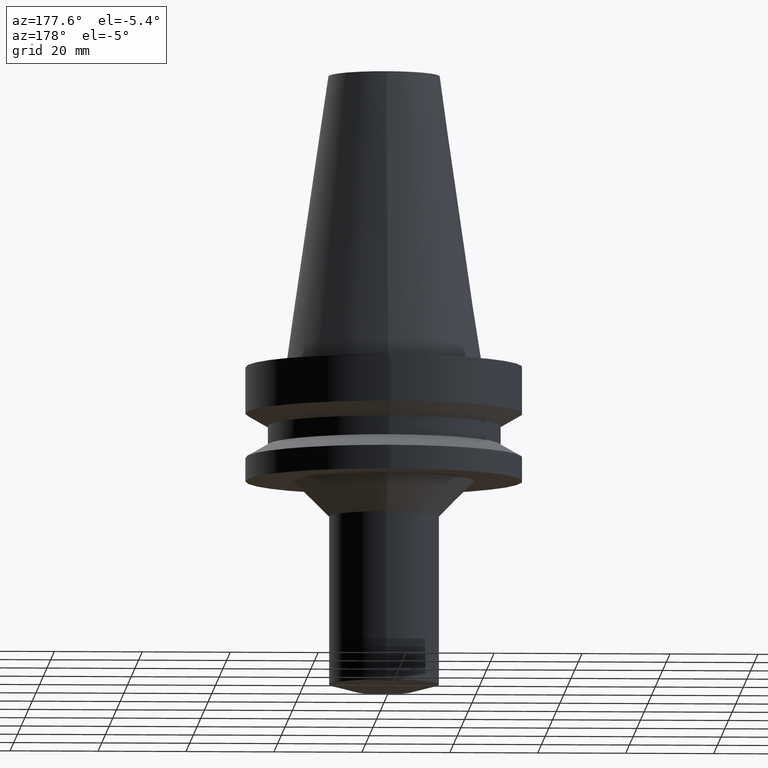
[diagram: clean part render]
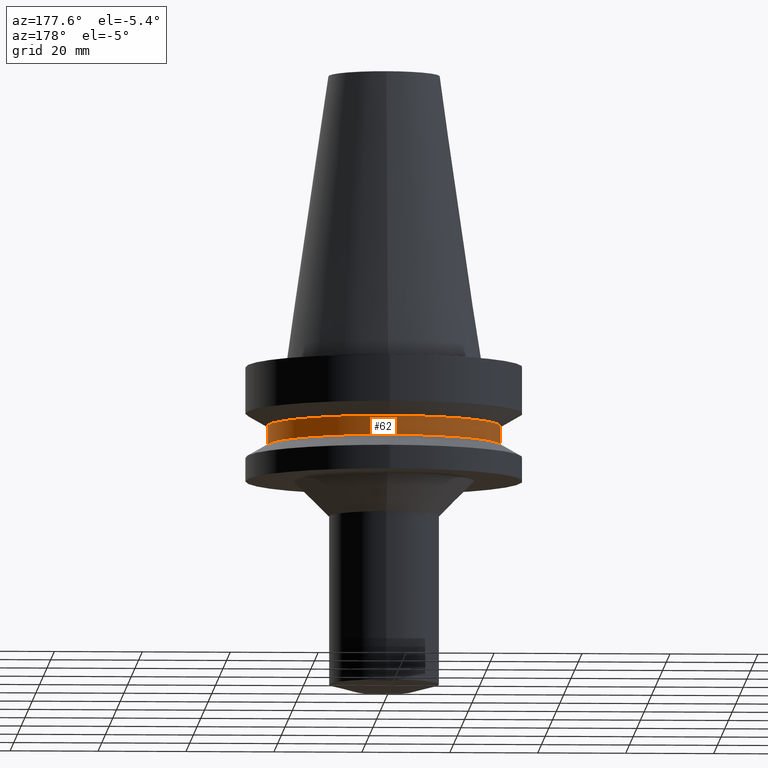
[diagram: same view with one face highlighted and labeled with its STEP entity id]
A machine part, auxiliary view. The second image highlights one B-rep face of the part: STEP entity #62.
In plain terms, the highlighted cylindrical surface (bore or boss wall) has radius 26.5 mm, axis along (0, -0, -1).
Its self-contained STEP definition (entity closure, byte-faithful):
#62=ADVANCED_FACE('Unnamed[1]',(#154,#155),#156,.T.);
#67=EDGE_CURVE('Unnamed[1]',#163,#163,#164,.T.);
#95=EDGE_CURVE('Unnamed[1]',#205,#205,#206,.T.);
#154=FACE_BOUND('',#275,.T.);
#155=FACE_BOUND('',#276,.T.);
#156=CYLINDRICAL_SURFACE('',#277,26.4999999999997);
#163=VERTEX_POINT('',#286);
#164=CIRCLE('',#287,26.5);
#205=VERTEX_POINT('',#338);
#206=CIRCLE('',#339,26.4999999999994);
#275=EDGE_LOOP('',(#408));
#276=EDGE_LOOP('',(#409));
#277=AXIS2_PLACEMENT_3D('',#410,#411,#412);
#286=CARTESIAN_POINT('',(1.1479681728942E-015,26.5,-18.7477430013855));
#287=AXIS2_PLACEMENT_3D('',#419,#420,#421);
#338=CARTESIAN_POINT('',(8.8494551369045E-016,26.4999999999995,-14.4522569986152));
#339=AXIS2_PLACEMENT_3D('',#464,#465,#466);
#408=ORIENTED_EDGE('',*,*,#67,.F.);
#409=ORIENTED_EDGE('',*,*,#95,.T.);
#410=CARTESIAN_POINT('',(1.01645684329232E-015,3.79612260994156E-014,-16.6000000000003));
#411=DIRECTION('',(6.12323399573677E-017,-4.72374929569225E-016,-1.0));
#412=DIRECTION('',(2.40974695439514E-032,1.0,-4.72374929569225E-016));
#419=CARTESIAN_POINT('',(1.1479681728942E-015,3.69466861504035E-014,-18.7477430013855));
#420=DIRECTION('',(6.12323399573676E-017,-4.72374929569225E-016,-1.0));
#421=DIRECTION('',(2.40974695439514E-032,1.0,-4.72374929569225E-016));
#464=CARTESIAN_POINT('',(8.8494551369045E-016,3.89757660484277E-014,-14.4522569986152));
#465=DIRECTION('',(6.12323399573677E-017,-4.72374929569225E-016,-1.0));
#466=DIRECTION('',(2.40974695439514E-032,1.0,-4.72374929569225E-016));